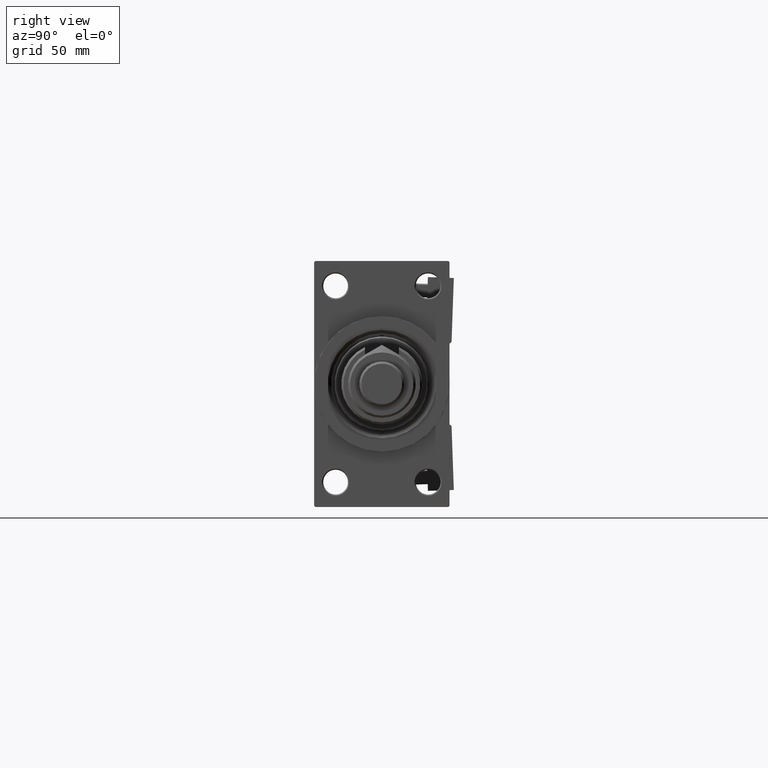
[diagram: clean part render]
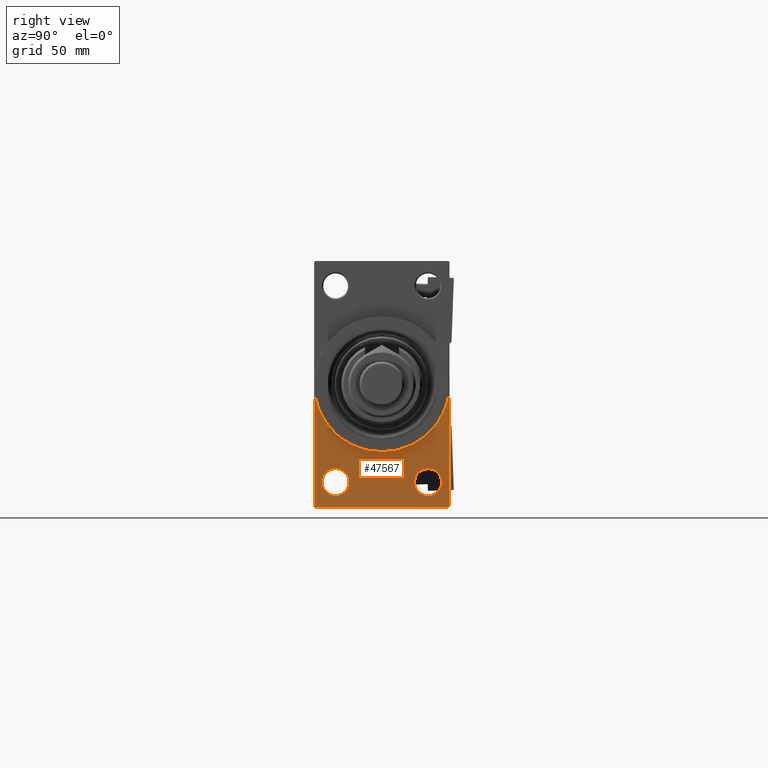
[diagram: same view with one face highlighted and labeled with its STEP entity id]
A machine part, right view. The second image highlights one B-rep face of the part: STEP entity #47567.
In plain terms, the highlighted planar face has unit normal (-1, 0, 0).
Its self-contained STEP definition (entity closure, byte-faithful):
#1470 = EDGE_CURVE ( 'NONE', #36977, #6867, #13182, .T. ) ;
#1519 = DIRECTION ( 'NONE',  ( 0.000000000000000000, 0.000000000000000000, 1.000000000000000000 ) ) ;
#1619 = AXIS2_PLACEMENT_3D ( 'NONE', #8279, #3768, #20229 ) ;
#1663 = VERTEX_POINT ( 'NONE', #32512 ) ;
#1918 = ORIENTED_EDGE ( 'NONE', *, *, #7407, .T. ) ;
#2486 = CIRCLE ( 'NONE', #1619, 5.999999999999977796 ) ;
#3118 = CARTESIAN_POINT ( 'NONE',  ( 167.9999999999999716, 29.49999999999999645, -54.49999999999999289 ) ) ;
#3280 = CARTESIAN_POINT ( 'NONE',  ( 167.9999999999999716, 20.50000000000000000, -49.49999999999997158 ) ) ;
#3559 = VERTEX_POINT ( 'NONE', #3280 ) ;
#3768 = DIRECTION ( 'NONE',  ( -1.000000000000000000, 0.000000000000000000, -0.000000000000000000 ) ) ;
#5121 = VERTEX_POINT ( 'NONE', #3118 ) ;
#5149 = VERTEX_POINT ( 'NONE', #48034 ) ;
#5197 = DIRECTION ( 'NONE',  ( 0.000000000000000000, 0.7071067811865352493, -0.7071067811865597852 ) ) ;
#5209 = CIRCLE ( 'NONE', #9477, 5.999999999999977796 ) ;
#5428 = CIRCLE ( 'NONE', #35135, 30.00000000000000000 ) ;
#5762 = CARTESIAN_POINT ( 'NONE',  ( 167.9999999999999716, 20.50000000000000000, -43.50000000000000000 ) ) ;
#6867 = VERTEX_POINT ( 'NONE', #22141 ) ;
#7407 = EDGE_CURVE ( 'NONE', #5121, #31040, #20383, .T. ) ;
#7419 = CARTESIAN_POINT ( 'NONE',  ( 167.9999999999999716, 29.99999999999999645, -53.99999999999999289 ) ) ;
#8279 = CARTESIAN_POINT ( 'NONE',  ( 167.9999999999999716, -20.50000000000000000, -43.50000000000000000 ) ) ;
#9195 = CARTESIAN_POINT ( 'NONE',  ( 167.9999999999999716, -29.50000000000000355, -54.50000000000000000 ) ) ;
#9477 = AXIS2_PLACEMENT_3D ( 'NONE', #5762, #38177, #1519 ) ;
#10161 = VERTEX_POINT ( 'NONE', #16595 ) ;
#10733 = DIRECTION ( 'NONE',  ( 1.000000000000000000, 0.000000000000000000, 0.000000000000000000 ) ) ;
#10888 = CARTESIAN_POINT ( 'NONE',  ( 167.9999999999999716, -20.50000000000000000, -43.50000000000000000 ) ) ;
#11767 = ORIENTED_EDGE ( 'NONE', *, *, #46494, .F. ) ;
#11898 = AXIS2_PLACEMENT_3D ( 'NONE', #48845, #28628, #44843 ) ;
#11932 = DIRECTION ( 'NONE',  ( -1.000000000000000000, 0.000000000000000000, -0.000000000000000000 ) ) ;
#11934 = CIRCLE ( 'NONE', #41629, 30.00000000000000000 ) ;
#12415 = FACE_OUTER_BOUND ( 'NONE', #19556, .T. ) ;
#12950 = CARTESIAN_POINT ( 'NONE',  ( 167.9999999999999716, 20.50000000000000000, -37.50000000000002132 ) ) ;
#13117 = DIRECTION ( 'NONE',  ( 0.000000000000000000, 0.000000000000000000, -1.000000000000000000 ) ) ;
#13182 = LINE ( 'NONE', #9195, #30751 ) ;
#14214 = ORIENTED_EDGE ( 'NONE', *, *, #45507, .T. ) ;
#14619 = LINE ( 'NONE', #42265, #16029 ) ;
#16029 = VECTOR ( 'NONE', #37758, 1000.000000000000000 ) ;
#16420 = FACE_BOUND ( 'NONE', #42170, .T. ) ;
#16595 = CARTESIAN_POINT ( 'NONE',  ( 167.9999999999999716, -30.00000000000000000, 0.000000000000000000 ) ) ;
#16927 = DIRECTION ( 'NONE',  ( -0.000000000000000000, 0.7071067811865474617, 0.7071067811865474617 ) ) ;
#17546 = ORIENTED_EDGE ( 'NONE', *, *, #40230, .T. ) ;
#18013 = VERTEX_POINT ( 'NONE', #12950 ) ;
#18175 = CARTESIAN_POINT ( 'NONE',  ( 167.9999999999999716, 0.000000000000000000, 0.000000000000000000 ) ) ;
#19154 = ORIENTED_EDGE ( 'NONE', *, *, #31402, .F. ) ;
#19556 = EDGE_LOOP ( 'NONE', ( #34568, #39234, #21117, #1918, #11767, #19154, #45423 ) ) ;
#20071 = EDGE_CURVE ( 'NONE', #10161, #36977, #14619, .T. ) ;
#20229 = DIRECTION ( 'NONE',  ( 0.000000000000000000, 0.000000000000000000, 1.000000000000000000 ) ) ;
#20383 = LINE ( 'NONE', #45632, #48717 ) ;
#20718 = CIRCLE ( 'NONE', #36723, 5.999999999999977796 ) ;
#21117 = ORIENTED_EDGE ( 'NONE', *, *, #44372, .F. ) ;
#21893 = DIRECTION ( 'NONE',  ( 0.000000000000000000, 0.000000000000000000, -1.000000000000000000 ) ) ;
#22141 = CARTESIAN_POINT ( 'NONE',  ( 167.9999999999999716, -29.50000000000000355, -54.50000000000000000 ) ) ;
#22811 = VECTOR ( 'NONE', #51244, 1000.000000000000000 ) ;
#23464 = DIRECTION ( 'NONE',  ( -1.000000000000000000, 0.000000000000000000, -0.000000000000000000 ) ) ;
#24476 = AXIS2_PLACEMENT_3D ( 'NONE', #27712, #23464, #47647 ) ;
#24630 = PLANE ( 'NONE',  #11898 ) ;
#24806 = CARTESIAN_POINT ( 'NONE',  ( 167.9999999999999716, 29.99999999999999645, 54.49999999999999289 ) ) ;
#25074 = LINE ( 'NONE', #24806, #47484 ) ;
#27354 = DIRECTION ( 'NONE',  ( 0.000000000000000000, 0.000000000000000000, 1.000000000000000000 ) ) ;
#27712 = CARTESIAN_POINT ( 'NONE',  ( 167.9999999999999716, 20.50000000000000000, -43.50000000000000000 ) ) ;
#28628 = DIRECTION ( 'NONE',  ( -1.000000000000000000, 0.000000000000000000, -0.000000000000000000 ) ) ;
#30751 = VECTOR ( 'NONE', #5197, 1000.000000000000000 ) ;
#31039 = EDGE_CURVE ( 'NONE', #1663, #5149, #20718, .T. ) ;
#31040 = VERTEX_POINT ( 'NONE', #7419 ) ;
#31402 = EDGE_CURVE ( 'NONE', #37792, #50370, #5428, .T. ) ;
#32512 = CARTESIAN_POINT ( 'NONE',  ( 167.9999999999999716, -20.50000000000000000, -49.49999999999997158 ) ) ;
#32628 = FACE_BOUND ( 'NONE', #40940, .T. ) ;
#33963 = CARTESIAN_POINT ( 'NONE',  ( 167.9999999999999716, 3.673940397442059178E-15, -30.00000000000000000 ) ) ;
#34568 = ORIENTED_EDGE ( 'NONE', *, *, #20071, .T. ) ;
#34767 = LINE ( 'NONE', #47523, #22811 ) ;
#35135 = AXIS2_PLACEMENT_3D ( 'NONE', #38975, #43769, #51738 ) ;
#36110 = ORIENTED_EDGE ( 'NONE', *, *, #31039, .T. ) ;
#36723 = AXIS2_PLACEMENT_3D ( 'NONE', #10888, #11932, #27354 ) ;
#36977 = VERTEX_POINT ( 'NONE', #38186 ) ;
#37185 = CIRCLE ( 'NONE', #24476, 5.999999999999977796 ) ;
#37758 = DIRECTION ( 'NONE',  ( 0.000000000000000000, 0.000000000000000000, -1.000000000000000000 ) ) ;
#37792 = VERTEX_POINT ( 'NONE', #33963 ) ;
#38177 = DIRECTION ( 'NONE',  ( -1.000000000000000000, 0.000000000000000000, -0.000000000000000000 ) ) ;
#38186 = CARTESIAN_POINT ( 'NONE',  ( 167.9999999999999716, -30.00000000000000000, -53.99999999999998579 ) ) ;
#38975 = CARTESIAN_POINT ( 'NONE',  ( 167.9999999999999716, 0.000000000000000000, 0.000000000000000000 ) ) ;
#39234 = ORIENTED_EDGE ( 'NONE', *, *, #1470, .T. ) ;
#40230 = EDGE_CURVE ( 'NONE', #18013, #3559, #37185, .T. ) ;
#40940 = EDGE_LOOP ( 'NONE', ( #47315, #17546 ) ) ;
#41629 = AXIS2_PLACEMENT_3D ( 'NONE', #18175, #10733, #21893 ) ;
#42170 = EDGE_LOOP ( 'NONE', ( #36110, #14214 ) ) ;
#42265 = CARTESIAN_POINT ( 'NONE',  ( 167.9999999999999716, -30.00000000000000000, 54.50000000000000000 ) ) ;
#43769 = DIRECTION ( 'NONE',  ( 1.000000000000000000, 0.000000000000000000, 0.000000000000000000 ) ) ;
#44372 = EDGE_CURVE ( 'NONE', #5121, #6867, #34767, .T. ) ;
#44843 = DIRECTION ( 'NONE',  ( -0.000000000000000000, 0.000000000000000000, 1.000000000000000000 ) ) ;
#45423 = ORIENTED_EDGE ( 'NONE', *, *, #48229, .F. ) ;
#45507 = EDGE_CURVE ( 'NONE', #5149, #1663, #2486, .T. ) ;
#45632 = CARTESIAN_POINT ( 'NONE',  ( 167.9999999999999716, 29.99999999999999645, -53.99999999999999289 ) ) ;
#46494 = EDGE_CURVE ( 'NONE', #50370, #31040, #25074, .T. ) ;
#47315 = ORIENTED_EDGE ( 'NONE', *, *, #49860, .T. ) ;
#47484 = VECTOR ( 'NONE', #13117, 1000.000000000000000 ) ;
#47523 = CARTESIAN_POINT ( 'NONE',  ( 167.9999999999999716, 29.99999999999999645, -54.49999999999999289 ) ) ;
#47567 = ADVANCED_FACE ( 'NONE', ( #16420, #32628, #12415 ), #24630, .F. ) ;
#47647 = DIRECTION ( 'NONE',  ( 0.000000000000000000, 0.000000000000000000, 1.000000000000000000 ) ) ;
#48034 = CARTESIAN_POINT ( 'NONE',  ( 167.9999999999999716, -20.50000000000000000, -37.50000000000002132 ) ) ;
#48229 = EDGE_CURVE ( 'NONE', #10161, #37792, #11934, .T. ) ;
#48717 = VECTOR ( 'NONE', #16927, 1000.000000000000114 ) ;
#48845 = CARTESIAN_POINT ( 'NONE',  ( 167.9999999999999716, 0.000000000000000000, 0.000000000000000000 ) ) ;
#48935 = CARTESIAN_POINT ( 'NONE',  ( 167.9999999999999716, 30.00000000000000000, 0.000000000000000000 ) ) ;
#49860 = EDGE_CURVE ( 'NONE', #3559, #18013, #5209, .T. ) ;
#50370 = VERTEX_POINT ( 'NONE', #48935 ) ;
#51244 = DIRECTION ( 'NONE',  ( 0.000000000000000000, -1.000000000000000000, -1.156482317317871478E-16 ) ) ;
#51738 = DIRECTION ( 'NONE',  ( 0.000000000000000000, 0.000000000000000000, -1.000000000000000000 ) ) ;